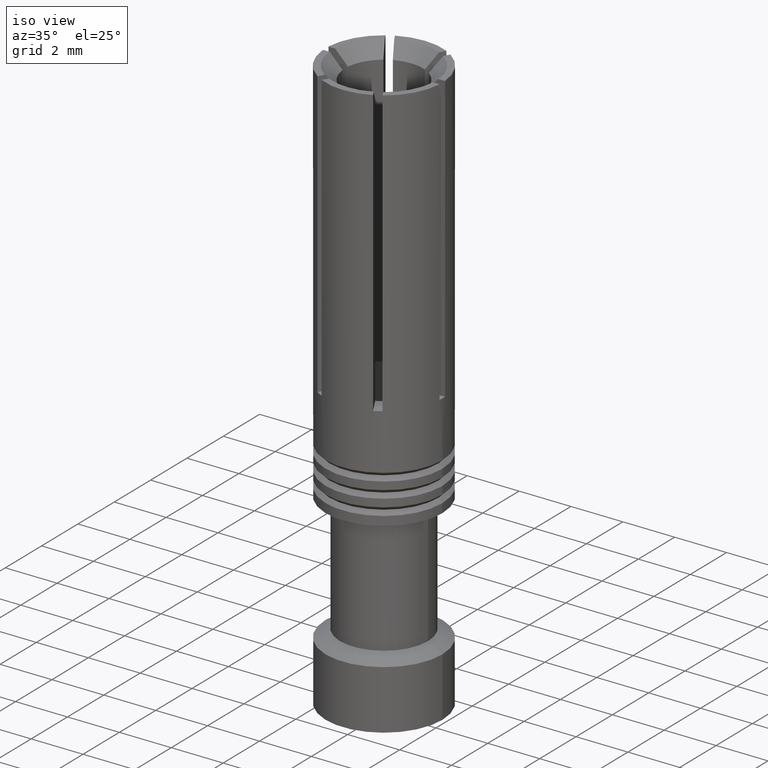
[diagram: clean part render]
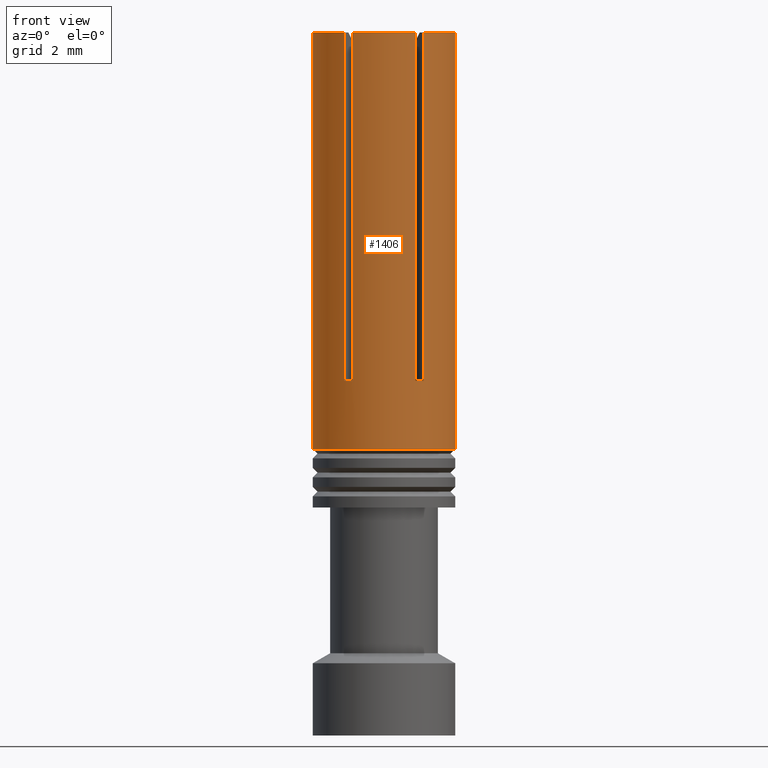
[diagram: tour spotlight — one face highlighted and labeled with its STEP entity id]
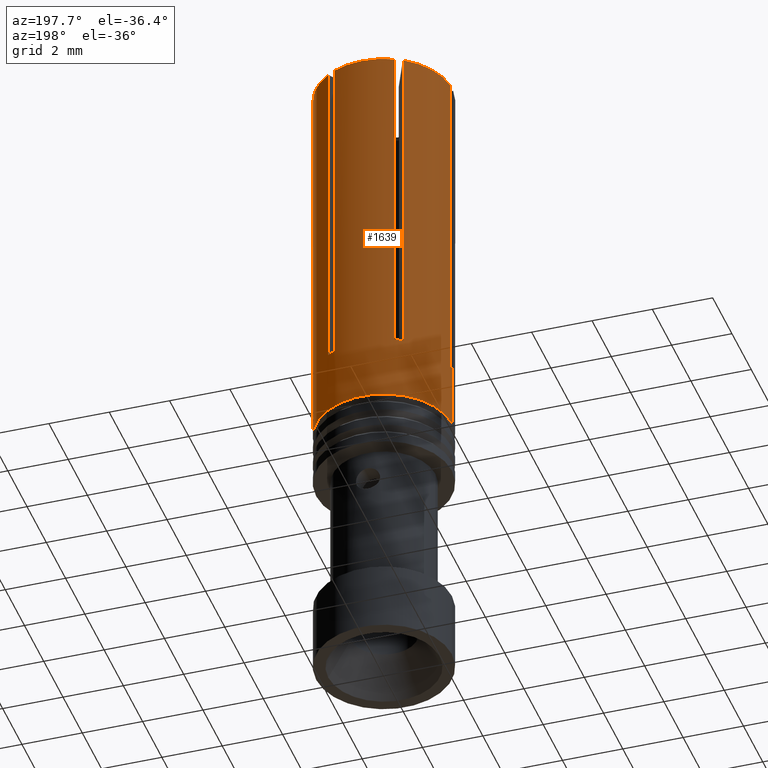
[diagram: tour spotlight — one face highlighted and labeled with its STEP entity id]
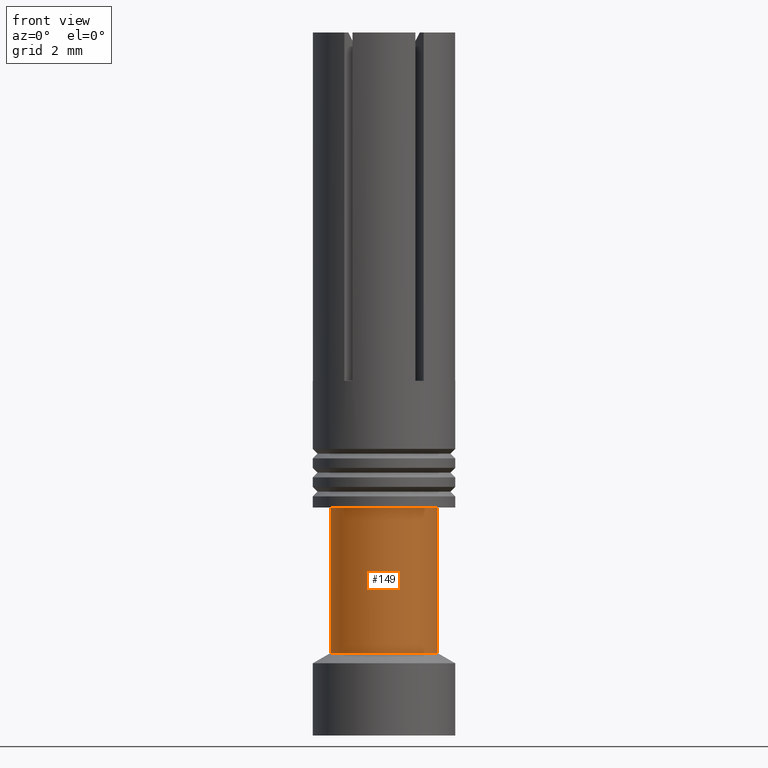
[diagram: tour spotlight — one face highlighted and labeled with its STEP entity id]
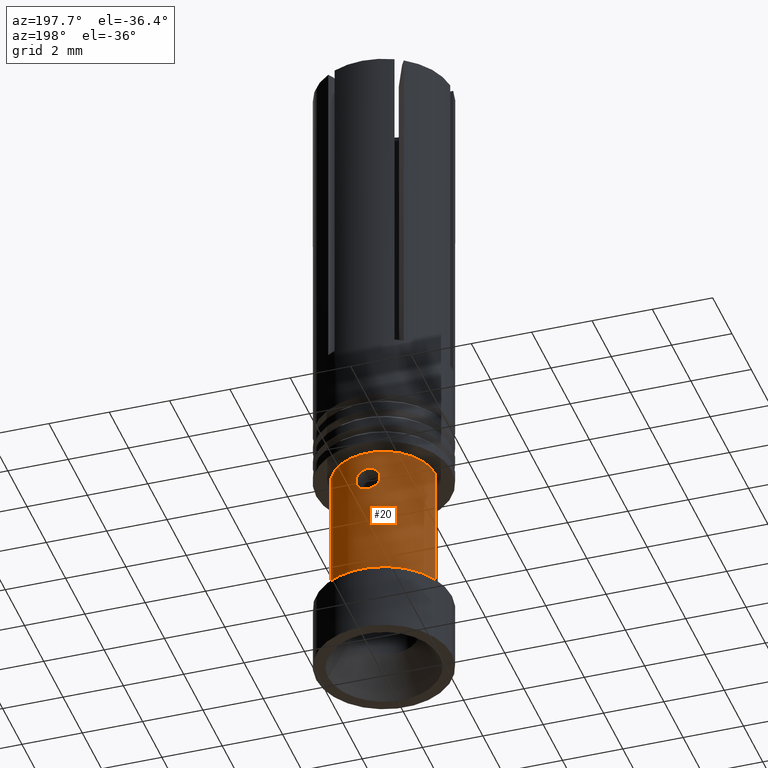
[diagram: tour spotlight — one face highlighted and labeled with its STEP entity id]
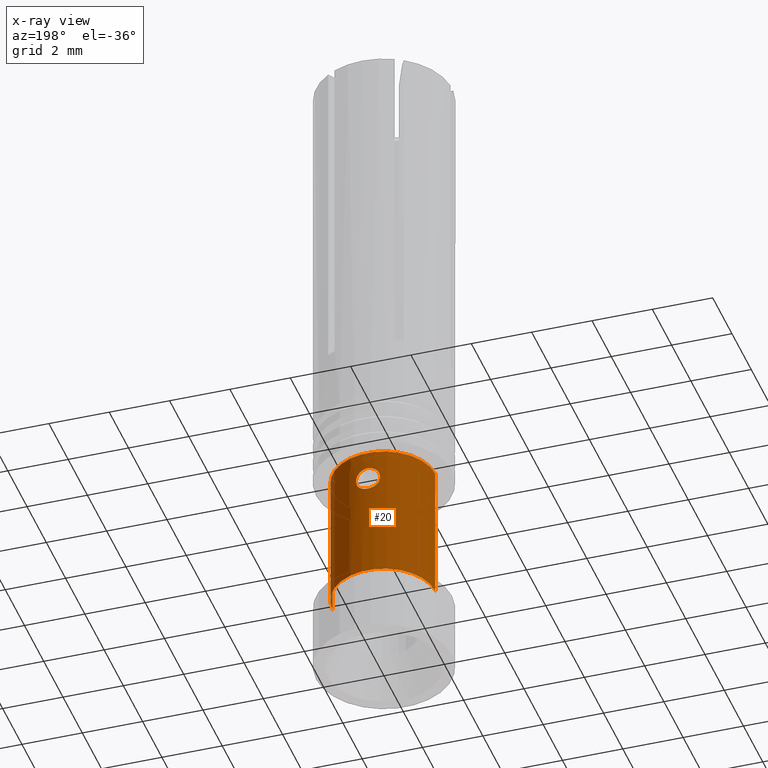
[diagram: x-ray of the same camera — body ghosted, this tour face saturated]
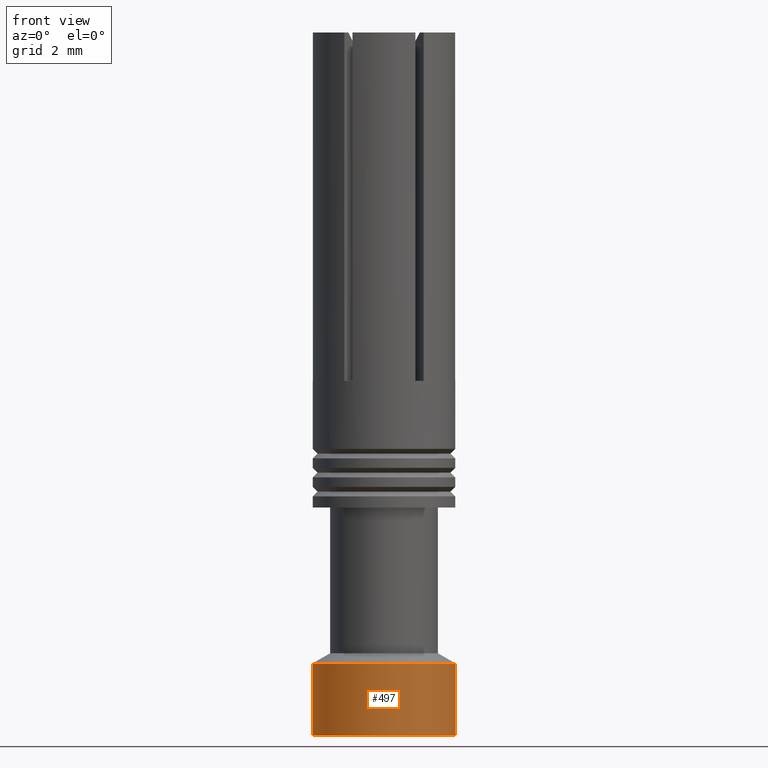
[diagram: tour spotlight — one face highlighted and labeled with its STEP entity id]
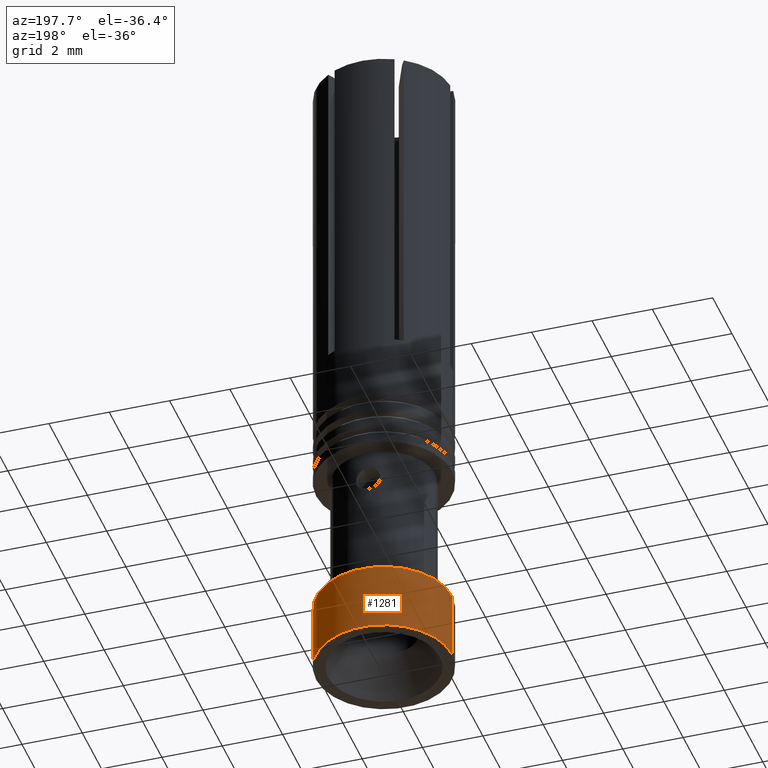
[diagram: tour spotlight — one face highlighted and labeled with its STEP entity id]
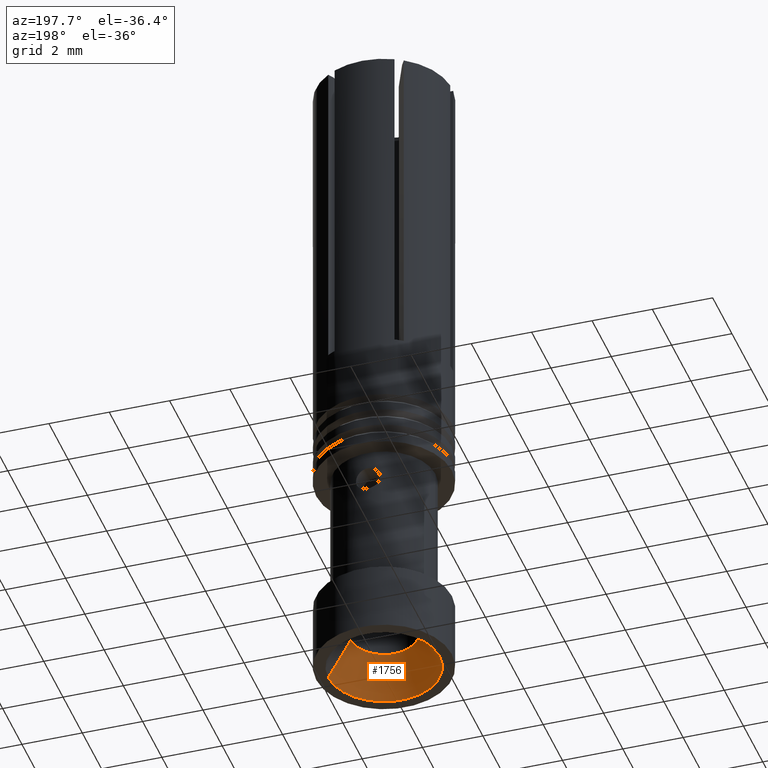
[diagram: tour spotlight — one face highlighted and labeled with its STEP entity id]
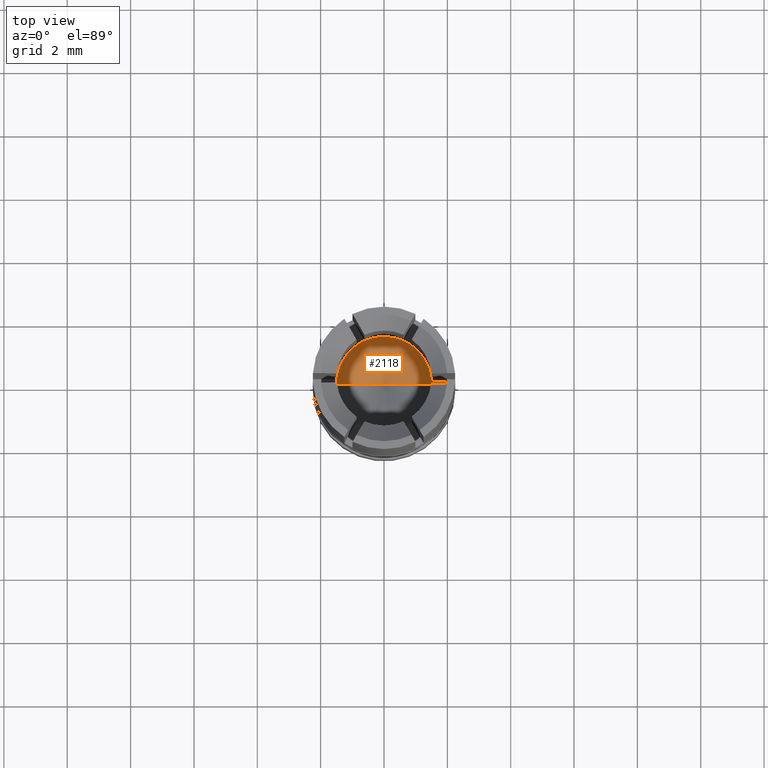
[diagram: tour spotlight — one face highlighted and labeled with its STEP entity id]
A machine part: a face-by-face anatomy tour. The part has 74 B-rep faces; the first image is the clean iso view, then the 8 largest visible faces are spotlighted one at a time (largest first), each with its STEP entity span.

Face 1 — front view, entity #1406. In plain terms, the highlighted cylindrical surface (partial cylindrical patch) has radius 2.25 mm, axis along (0, 0, 1).
Definition (entity closure, byte-faithful):
#3 = EDGE_CURVE ( 'NONE', #1673, #1487, #750, .T. ) ;
#46 = VECTOR ( 'NONE', #210, 1000.000000000000000 ) ;
#101 = DIRECTION ( 'NONE',  ( 1.000000000000000000, 0.000000000000000000, 0.000000000000000000 ) ) ;
#113 = DIRECTION ( 'NONE',  ( 0.000000000000000000, 0.000000000000000000, -1.000000000000000000 ) ) ;
#118 = ORIENTED_EDGE ( 'NONE', *, *, #186, .F. ) ;
#123 = CYLINDRICAL_SURFACE ( 'NONE', #1655, 2.250000000000000000 ) ;
#128 = LINE ( 'NONE', #1519, #1627 ) ;
#131 = CIRCLE ( 'NONE', #418, 2.250000000000000000 ) ;
#132 = AXIS2_PLACEMENT_3D ( 'NONE', #995, #1845, #268 ) ;
#186 = EDGE_CURVE ( 'NONE', #1465, #1487, #128, .T. ) ;
#205 = CIRCLE ( 'NONE', #1621, 2.250000000000000000 ) ;
#210 = DIRECTION ( 'NONE',  ( 0.000000000000000000, 0.000000000000000000, -1.000000000000000000 ) ) ;
#220 = LINE ( 'NONE', #1608, #1618 ) ;
#228 = ORIENTED_EDGE ( 'NONE', *, *, #1303, .T. ) ;
#250 = CARTESIAN_POINT ( 'NONE',  ( -2.244994432064360002, -0.1499999999999999944, 349.0000000000000000 ) ) ;
#268 = DIRECTION ( 'NONE',  ( 1.000000000000000000, 0.000000000000000000, 0.000000000000000000 ) ) ;
#273 = DIRECTION ( 'NONE',  ( 1.000000000000000000, 0.000000000000000000, 0.000000000000000000 ) ) ;
#283 = EDGE_CURVE ( 'NONE', #2041, #1731, #205, .T. ) ;
#300 = VECTOR ( 'NONE', #715, 1000.000000000000000 ) ;
#342 = CARTESIAN_POINT ( 'NONE',  ( 2.250000000000000000, 0.000000000000000000, 345.0000000000000000 ) ) ;
#374 = ORIENTED_EDGE ( 'NONE', *, *, #1145, .T. ) ;
#392 = VERTEX_POINT ( 'NONE', #1299 ) ;
#393 = DIRECTION ( 'NONE',  ( 0.000000000000000000, 0.000000000000000000, -1.000000000000000000 ) ) ;
#412 = ORIENTED_EDGE ( 'NONE', *, *, #2096, .F. ) ;
#418 = AXIS2_PLACEMENT_3D ( 'NONE', #444, #459, #273 ) ;
#426 = VERTEX_POINT ( 'NONE', #1637 ) ;
#440 = VERTEX_POINT ( 'NONE', #1482 ) ;
#442 = VECTOR ( 'NONE', #2095, 1000.000000000000000 ) ;
#444 = CARTESIAN_POINT ( 'NONE',  ( 0.000000000000000000, 0.000000000000000000, 349.0000000000000000 ) ) ;
#459 = DIRECTION ( 'NONE',  ( 0.000000000000000000, 0.000000000000000000, -1.000000000000000000 ) ) ;
#510 = LINE ( 'NONE', #1371, #300 ) ;
#531 = AXIS2_PLACEMENT_3D ( 'NONE', #1272, #393, #721 ) ;
#536 = DIRECTION ( 'NONE',  ( 1.000000000000000000, 0.000000000000000000, 0.000000000000000000 ) ) ;
#547 = LINE ( 'NONE', #1559, #442 ) ;
#551 = CARTESIAN_POINT ( 'NONE',  ( 0.000000000000000000, 0.000000000000000000, 360.0000000000000000 ) ) ;
#564 = VECTOR ( 'NONE', #1623, 1000.000000000000000 ) ;
#700 = CARTESIAN_POINT ( 'NONE',  ( -1.252401026599850198, -1.869222209522360068, 345.0000000000000000 ) ) ;
#705 = EDGE_CURVE ( 'NONE', #392, #2202, #712, .T. ) ;
#710 = CIRCLE ( 'NONE', #531, 2.250000000000000000 ) ;
#712 = LINE ( 'NONE', #700, #46 ) ;
#715 = DIRECTION ( 'NONE',  ( 0.000000000000000000, 0.000000000000000000, 1.000000000000000000 ) ) ;
#716 = VERTEX_POINT ( 'NONE', #1389 ) ;
#717 = AXIS2_PLACEMENT_3D ( 'NONE', #989, #113, #1509 ) ;
#721 = DIRECTION ( 'NONE',  ( 1.000000000000000000, 0.000000000000000000, 0.000000000000000000 ) ) ;
#739 = DIRECTION ( 'NONE',  ( 0.000000000000000000, 0.000000000000000000, 1.000000000000000000 ) ) ;
#750 = CIRCLE ( 'NONE', #717, 2.250000000000000000 ) ;
#778 = CARTESIAN_POINT ( 'NONE',  ( 2.244994432064360002, -0.1499999999999999944, 360.0000000000000000 ) ) ;
#785 = AXIS2_PLACEMENT_3D ( 'NONE', #1466, #1816, #1653 ) ;
#809 = CARTESIAN_POINT ( 'NONE',  ( -0.9925934054645180193, -2.019222209522359535, 360.0000000000000000 ) ) ;
#856 = AXIS2_PLACEMENT_3D ( 'NONE', #1784, #1635, #1765 ) ;
#869 = CARTESIAN_POINT ( 'NONE',  ( -2.244994432064370216, -0.1499999999999999944, 360.0000000000000000 ) ) ;
#878 = DIRECTION ( 'NONE',  ( 0.000000000000000000, 0.000000000000000000, 1.000000000000000000 ) ) ;
#880 = ORIENTED_EDGE ( 'NONE', *, *, #3, .T. ) ;
#894 = VECTOR ( 'NONE', #2179, 1000.000000000000000 ) ;
#947 = ORIENTED_EDGE ( 'NONE', *, *, #1269, .T. ) ;
#956 = CARTESIAN_POINT ( 'NONE',  ( 1.252401026599850198, -1.869222209522360068, 360.0000000000000000 ) ) ;
#967 = VERTEX_POINT ( 'NONE', #1843 ) ;
#972 = FACE_OUTER_BOUND ( 'NONE', #2139, .T. ) ;
#989 = CARTESIAN_POINT ( 'NONE',  ( 0.000000000000000000, 0.000000000000000000, 349.0000000000000000 ) ) ;
#995 = CARTESIAN_POINT ( 'NONE',  ( 0.000000000000000000, 0.000000000000000000, 349.0000000000000000 ) ) ;
#1011 = ORIENTED_EDGE ( 'NONE', *, *, #1634, .F. ) ;
#1043 = CIRCLE ( 'NONE', #856, 2.250000000000000000 ) ;
#1114 = CIRCLE ( 'NONE', #132, 2.250000000000000000 ) ;
#1131 = VERTEX_POINT ( 'NONE', #250 ) ;
#1145 = EDGE_CURVE ( 'NONE', #1131, #440, #131, .T. ) ;
#1252 = EDGE_CURVE ( 'NONE', #1825, #1465, #1043, .T. ) ;
#1266 = ORIENTED_EDGE ( 'NONE', *, *, #1791, .F. ) ;
#1267 = CARTESIAN_POINT ( 'NONE',  ( 0.000000000000000000, 0.000000000000000000, 360.0000000000000000 ) ) ;
#1269 = EDGE_CURVE ( 'NONE', #716, #1731, #1384, .T. ) ;
#1272 = CARTESIAN_POINT ( 'NONE',  ( 0.000000000000000000, 0.000000000000000000, 349.0000000000000000 ) ) ;
#1299 = CARTESIAN_POINT ( 'NONE',  ( -1.252401026599850198, -1.869222209522360068, 360.0000000000000000 ) ) ;
#1303 = EDGE_CURVE ( 'NONE', #426, #1673, #1894, .T. ) ;
#1371 = CARTESIAN_POINT ( 'NONE',  ( 1.252401026599850198, -1.869222209522360068, 345.0000000000000000 ) ) ;
#1384 = LINE ( 'NONE', #2064, #1722 ) ;
#1385 = ORIENTED_EDGE ( 'NONE', *, *, #1844, .T. ) ;
#1389 = CARTESIAN_POINT ( 'NONE',  ( 0.9925934054645160209, -2.019222209522359535, 349.0000000000000000 ) ) ;
#1402 = EDGE_CURVE ( 'NONE', #967, #716, #1114, .T. ) ;
#1406 = ADVANCED_FACE ( 'NONE', ( #972 ), #123, .T. ) ;
#1421 = EDGE_CURVE ( 'NONE', #2041, #1584, #1468, .T. ) ;
#1454 = ORIENTED_EDGE ( 'NONE', *, *, #2114, .F. ) ;
#1465 = VERTEX_POINT ( 'NONE', #778 ) ;
#1466 = CARTESIAN_POINT ( 'NONE',  ( 0.000000000000000000, 0.000000000000000000, 346.8499999999999659 ) ) ;
#1468 = LINE ( 'NONE', #1515, #894 ) ;
#1479 = CIRCLE ( 'NONE', #2116, 2.250000000000000000 ) ;
#1480 = CARTESIAN_POINT ( 'NONE',  ( 0.000000000000000000, 0.000000000000000000, 345.0000000000000000 ) ) ;
#1482 = CARTESIAN_POINT ( 'NONE',  ( -2.250000000000000000, 2.755455298081544285E-16, 349.0000000000000000 ) ) ;
#1487 = VERTEX_POINT ( 'NONE', #2014 ) ;
#1490 = DIRECTION ( 'NONE',  ( 0.000000000000000000, 0.000000000000000000, 1.000000000000000000 ) ) ;
#1500 = ORIENTED_EDGE ( 'NONE', *, *, #283, .F. ) ;
#1509 = DIRECTION ( 'NONE',  ( 1.000000000000000000, 0.000000000000000000, 0.000000000000000000 ) ) ;
#1515 = CARTESIAN_POINT ( 'NONE',  ( -0.9925934054645180193, -2.019222209522359535, 345.0000000000000000 ) ) ;
#1519 = CARTESIAN_POINT ( 'NONE',  ( 2.244994432064360002, -0.1499999999999999944, 345.0000000000000000 ) ) ;
#1559 = CARTESIAN_POINT ( 'NONE',  ( -2.244994432064360002, -0.1499999999999999944, 345.0000000000000000 ) ) ;
#1584 = VERTEX_POINT ( 'NONE', #1875 ) ;
#1608 = CARTESIAN_POINT ( 'NONE',  ( -2.250000000000000000, 2.755455298081544285E-16, 345.0000000000000000 ) ) ;
#1618 = VECTOR ( 'NONE', #739, 1000.000000000000000 ) ;
#1620 = DIRECTION ( 'NONE',  ( 0.000000000000000000, 0.000000000000000000, 1.000000000000000000 ) ) ;
#1621 = AXIS2_PLACEMENT_3D ( 'NONE', #1267, #878, #536 ) ;
#1623 = DIRECTION ( 'NONE',  ( 0.000000000000000000, 0.000000000000000000, 1.000000000000000000 ) ) ;
#1627 = VECTOR ( 'NONE', #2198, 1000.000000000000000 ) ;
#1634 = EDGE_CURVE ( 'NONE', #1944, #440, #220, .T. ) ;
#1635 = DIRECTION ( 'NONE',  ( 0.000000000000000000, 0.000000000000000000, 1.000000000000000000 ) ) ;
#1637 = CARTESIAN_POINT ( 'NONE',  ( 2.250000000000000000, 0.000000000000000000, 346.8499999999999659 ) ) ;
#1653 = DIRECTION ( 'NONE',  ( 1.000000000000000000, 0.000000000000000000, 0.000000000000000000 ) ) ;
#1655 = AXIS2_PLACEMENT_3D ( 'NONE', #1480, #1490, #101 ) ;
#1662 = EDGE_CURVE ( 'NONE', #1584, #2202, #710, .T. ) ;
#1673 = VERTEX_POINT ( 'NONE', #1772 ) ;
#1722 = VECTOR ( 'NONE', #1726, 1000.000000000000000 ) ;
#1726 = DIRECTION ( 'NONE',  ( 0.000000000000000000, 0.000000000000000000, 1.000000000000000000 ) ) ;
#1731 = VERTEX_POINT ( 'NONE', #2121 ) ;
#1765 = DIRECTION ( 'NONE',  ( 1.000000000000000000, 0.000000000000000000, 0.000000000000000000 ) ) ;
#1772 = CARTESIAN_POINT ( 'NONE',  ( 2.250000000000000000, 0.000000000000000000, 349.0000000000000000 ) ) ;
#1784 = CARTESIAN_POINT ( 'NONE',  ( 0.000000000000000000, 0.000000000000000000, 360.0000000000000000 ) ) ;
#1791 = EDGE_CURVE ( 'NONE', #2106, #392, #1479, .T. ) ;
#1810 = ORIENTED_EDGE ( 'NONE', *, *, #1662, .T. ) ;
#1816 = DIRECTION ( 'NONE',  ( 0.000000000000000000, 0.000000000000000000, 1.000000000000000000 ) ) ;
#1825 = VERTEX_POINT ( 'NONE', #956 ) ;
#1827 = CARTESIAN_POINT ( 'NONE',  ( -2.250000000000000000, 2.755455298081544285E-16, 346.8499999999999659 ) ) ;
#1843 = CARTESIAN_POINT ( 'NONE',  ( 1.252401026599850198, -1.869222209522360068, 349.0000000000000000 ) ) ;
#1844 = EDGE_CURVE ( 'NONE', #1944, #426, #1905, .T. ) ;
#1845 = DIRECTION ( 'NONE',  ( 0.000000000000000000, 0.000000000000000000, -1.000000000000000000 ) ) ;
#1875 = CARTESIAN_POINT ( 'NONE',  ( -0.9925934054645180193, -2.019222209522359535, 349.0000000000000000 ) ) ;
#1894 = LINE ( 'NONE', #342, #564 ) ;
#1905 = CIRCLE ( 'NONE', #785, 2.250000000000000000 ) ;
#1915 = CARTESIAN_POINT ( 'NONE',  ( -1.252401026599850198, -1.869222209522360068, 349.0000000000000000 ) ) ;
#1922 = ORIENTED_EDGE ( 'NONE', *, *, #1402, .T. ) ;
#1928 = DIRECTION ( 'NONE',  ( 1.000000000000000000, 0.000000000000000000, 0.000000000000000000 ) ) ;
#1944 = VERTEX_POINT ( 'NONE', #1827 ) ;
#1983 = ORIENTED_EDGE ( 'NONE', *, *, #1421, .T. ) ;
#1993 = ORIENTED_EDGE ( 'NONE', *, *, #1252, .F. ) ;
#2014 = CARTESIAN_POINT ( 'NONE',  ( 2.244994432064360002, -0.1499999999999999944, 349.0000000000000000 ) ) ;
#2041 = VERTEX_POINT ( 'NONE', #809 ) ;
#2064 = CARTESIAN_POINT ( 'NONE',  ( 0.9925934054645160209, -2.019222209522359535, 345.0000000000000000 ) ) ;
#2095 = DIRECTION ( 'NONE',  ( 0.000000000000000000, 0.000000000000000000, 1.000000000000000000 ) ) ;
#2096 = EDGE_CURVE ( 'NONE', #1131, #2106, #547, .T. ) ;
#2106 = VERTEX_POINT ( 'NONE', #869 ) ;
#2114 = EDGE_CURVE ( 'NONE', #967, #1825, #510, .T. ) ;
#2116 = AXIS2_PLACEMENT_3D ( 'NONE', #551, #1620, #1928 ) ;
#2121 = CARTESIAN_POINT ( 'NONE',  ( 0.9925934054645160209, -2.019222209522359535, 360.0000000000000000 ) ) ;
#2139 = EDGE_LOOP ( 'NONE', ( #1011, #1385, #228, #880, #118, #1993, #1454, #1922, #947, #1500, #1983, #1810, #2197, #1266, #412, #374 ) ) ;
#2179 = DIRECTION ( 'NONE',  ( 0.000000000000000000, 0.000000000000000000, -1.000000000000000000 ) ) ;
#2197 = ORIENTED_EDGE ( 'NONE', *, *, #705, .F. ) ;
#2198 = DIRECTION ( 'NONE',  ( 0.000000000000000000, 0.000000000000000000, -1.000000000000000000 ) ) ;
#2202 = VERTEX_POINT ( 'NONE', #1915 ) ;

Face 2 — auxiliary view, entity #1639. In plain terms, the highlighted cylindrical surface (partial cylindrical patch) has radius 2.25 mm, axis along (0, 0, 1).
Definition (entity closure, byte-faithful):
#9 = VECTOR ( 'NONE', #1520, 1000.000000000000000 ) ;
#15 = ORIENTED_EDGE ( 'NONE', *, *, #1303, .F. ) ;
#25 = ORIENTED_EDGE ( 'NONE', *, *, #358, .F. ) ;
#37 = FACE_OUTER_BOUND ( 'NONE', #160, .T. ) ;
#45 = EDGE_CURVE ( 'NONE', #440, #180, #1194, .T. ) ;
#86 = DIRECTION ( 'NONE',  ( 0.000000000000000000, 0.000000000000000000, 1.000000000000000000 ) ) ;
#117 = VECTOR ( 'NONE', #1176, 1000.000000000000000 ) ;
#130 = ORIENTED_EDGE ( 'NONE', *, *, #642, .F. ) ;
#136 = CIRCLE ( 'NONE', #1410, 2.250000000000000000 ) ;
#144 = DIRECTION ( 'NONE',  ( 1.000000000000000000, 0.000000000000000000, 0.000000000000000000 ) ) ;
#153 = DIRECTION ( 'NONE',  ( 0.000000000000000000, 0.000000000000000000, -1.000000000000000000 ) ) ;
#160 = EDGE_LOOP ( 'NONE', ( #807, #671, #771, #1413, #311, #2159, #2021, #1598, #2150, #130, #726, #1647, #25, #695, #1234, #15 ) ) ;
#180 = VERTEX_POINT ( 'NONE', #1848 ) ;
#198 = DIRECTION ( 'NONE',  ( 1.000000000000000000, 0.000000000000000000, 0.000000000000000000 ) ) ;
#219 = VERTEX_POINT ( 'NONE', #702 ) ;
#220 = LINE ( 'NONE', #1608, #1618 ) ;
#236 = AXIS2_PLACEMENT_3D ( 'NONE', #1308, #429, #1988 ) ;
#311 = ORIENTED_EDGE ( 'NONE', *, *, #1818, .F. ) ;
#324 = DIRECTION ( 'NONE',  ( 1.000000000000000000, 0.000000000000000000, 0.000000000000000000 ) ) ;
#339 = VERTEX_POINT ( 'NONE', #407 ) ;
#342 = CARTESIAN_POINT ( 'NONE',  ( 2.250000000000000000, 0.000000000000000000, 345.0000000000000000 ) ) ;
#343 = VERTEX_POINT ( 'NONE', #2002 ) ;
#358 = EDGE_CURVE ( 'NONE', #339, #422, #136, .T. ) ;
#360 = CARTESIAN_POINT ( 'NONE',  ( 0.9925934054645180193, 2.019222209522359535, 349.0000000000000000 ) ) ;
#369 = DIRECTION ( 'NONE',  ( 0.000000000000000000, 0.000000000000000000, -1.000000000000000000 ) ) ;
#386 = VERTEX_POINT ( 'NONE', #1106 ) ;
#404 = VECTOR ( 'NONE', #1324, 1000.000000000000000 ) ;
#407 = CARTESIAN_POINT ( 'NONE',  ( 2.244994432064360002, 0.1499999999999999944, 360.0000000000000000 ) ) ;
#413 = CARTESIAN_POINT ( 'NONE',  ( 0.000000000000000000, 0.000000000000000000, 345.0000000000000000 ) ) ;
#422 = VERTEX_POINT ( 'NONE', #1311 ) ;
#426 = VERTEX_POINT ( 'NONE', #1637 ) ;
#429 = DIRECTION ( 'NONE',  ( 0.000000000000000000, 0.000000000000000000, 1.000000000000000000 ) ) ;
#431 = CARTESIAN_POINT ( 'NONE',  ( -0.9925934054645160209, 2.019222209522359535, 360.0000000000000000 ) ) ;
#440 = VERTEX_POINT ( 'NONE', #1482 ) ;
#474 = CARTESIAN_POINT ( 'NONE',  ( 0.000000000000000000, 0.000000000000000000, 349.0000000000000000 ) ) ;
#528 = CARTESIAN_POINT ( 'NONE',  ( 0.000000000000000000, 0.000000000000000000, 360.0000000000000000 ) ) ;
#542 = DIRECTION ( 'NONE',  ( 0.000000000000000000, 0.000000000000000000, 1.000000000000000000 ) ) ;
#555 = CARTESIAN_POINT ( 'NONE',  ( -0.9925934054645160209, 2.019222209522359535, 349.0000000000000000 ) ) ;
#564 = VECTOR ( 'NONE', #1623, 1000.000000000000000 ) ;
#601 = CIRCLE ( 'NONE', #1546, 2.250000000000000000 ) ;
#628 = CARTESIAN_POINT ( 'NONE',  ( -1.252401026599850198, 1.869222209522360068, 345.0000000000000000 ) ) ;
#642 = EDGE_CURVE ( 'NONE', #1019, #219, #1247, .T. ) ;
#644 = DIRECTION ( 'NONE',  ( 1.000000000000000000, 0.000000000000000000, 0.000000000000000000 ) ) ;
#649 = DIRECTION ( 'NONE',  ( 0.000000000000000000, 0.000000000000000000, -1.000000000000000000 ) ) ;
#650 = CARTESIAN_POINT ( 'NONE',  ( -2.244994432064360002, 0.1499999999999999944, 345.0000000000000000 ) ) ;
#671 = ORIENTED_EDGE ( 'NONE', *, *, #1634, .T. ) ;
#695 = ORIENTED_EDGE ( 'NONE', *, *, #1819, .T. ) ;
#702 = CARTESIAN_POINT ( 'NONE',  ( 0.9925934054645180193, 2.019222209522359535, 360.0000000000000000 ) ) ;
#711 = CARTESIAN_POINT ( 'NONE',  ( 1.252401026599850198, 1.869222209522360068, 349.0000000000000000 ) ) ;
#726 = ORIENTED_EDGE ( 'NONE', *, *, #897, .T. ) ;
#739 = DIRECTION ( 'NONE',  ( 0.000000000000000000, 0.000000000000000000, 1.000000000000000000 ) ) ;
#742 = AXIS2_PLACEMENT_3D ( 'NONE', #413, #542, #1411 ) ;
#771 = ORIENTED_EDGE ( 'NONE', *, *, #45, .T. ) ;
#806 = EDGE_CURVE ( 'NONE', #426, #1944, #2228, .T. ) ;
#807 = ORIENTED_EDGE ( 'NONE', *, *, #806, .T. ) ;
#861 = DIRECTION ( 'NONE',  ( 0.000000000000000000, 0.000000000000000000, 1.000000000000000000 ) ) ;
#864 = EDGE_CURVE ( 'NONE', #1031, #1673, #601, .T. ) ;
#885 = CYLINDRICAL_SURFACE ( 'NONE', #742, 2.250000000000000000 ) ;
#897 = EDGE_CURVE ( 'NONE', #1019, #1705, #1369, .T. ) ;
#936 = AXIS2_PLACEMENT_3D ( 'NONE', #1344, #86, #644 ) ;
#953 = LINE ( 'NONE', #990, #1903 ) ;
#961 = DIRECTION ( 'NONE',  ( 0.000000000000000000, 0.000000000000000000, 1.000000000000000000 ) ) ;
#990 = CARTESIAN_POINT ( 'NONE',  ( 1.252401026599850198, 1.869222209522360068, 345.0000000000000000 ) ) ;
#1019 = VERTEX_POINT ( 'NONE', #360 ) ;
#1023 = EDGE_CURVE ( 'NONE', #343, #1244, #2045, .T. ) ;
#1031 = VERTEX_POINT ( 'NONE', #2227 ) ;
#1041 = AXIS2_PLACEMENT_3D ( 'NONE', #1918, #369, #1069 ) ;
#1069 = DIRECTION ( 'NONE',  ( 1.000000000000000000, 0.000000000000000000, 0.000000000000000000 ) ) ;
#1073 = CARTESIAN_POINT ( 'NONE',  ( 0.9925934054645180193, 2.019222209522359535, 345.0000000000000000 ) ) ;
#1080 = AXIS2_PLACEMENT_3D ( 'NONE', #1523, #153, #144 ) ;
#1082 = CIRCLE ( 'NONE', #936, 2.250000000000000000 ) ;
#1094 = EDGE_CURVE ( 'NONE', #219, #1417, #2186, .T. ) ;
#1106 = CARTESIAN_POINT ( 'NONE',  ( -1.252401026599850198, 1.869222209522360068, 360.0000000000000000 ) ) ;
#1118 = CARTESIAN_POINT ( 'NONE',  ( 0.000000000000000000, 0.000000000000000000, 360.0000000000000000 ) ) ;
#1154 = VECTOR ( 'NONE', #1677, 1000.000000000000000 ) ;
#1158 = LINE ( 'NONE', #650, #9 ) ;
#1176 = DIRECTION ( 'NONE',  ( 0.000000000000000000, 0.000000000000000000, -1.000000000000000000 ) ) ;
#1188 = EDGE_CURVE ( 'NONE', #1705, #422, #953, .T. ) ;
#1194 = CIRCLE ( 'NONE', #2019, 2.250000000000000000 ) ;
#1204 = DIRECTION ( 'NONE',  ( 1.000000000000000000, 0.000000000000000000, 0.000000000000000000 ) ) ;
#1234 = ORIENTED_EDGE ( 'NONE', *, *, #864, .T. ) ;
#1244 = VERTEX_POINT ( 'NONE', #555 ) ;
#1247 = LINE ( 'NONE', #1073, #1321 ) ;
#1303 = EDGE_CURVE ( 'NONE', #426, #1673, #1894, .T. ) ;
#1308 = CARTESIAN_POINT ( 'NONE',  ( 0.000000000000000000, 0.000000000000000000, 346.8499999999999659 ) ) ;
#1311 = CARTESIAN_POINT ( 'NONE',  ( 1.252401026599850198, 1.869222209522360068, 360.0000000000000000 ) ) ;
#1321 = VECTOR ( 'NONE', #1753, 1000.000000000000000 ) ;
#1324 = DIRECTION ( 'NONE',  ( 0.000000000000000000, 0.000000000000000000, -1.000000000000000000 ) ) ;
#1330 = AXIS2_PLACEMENT_3D ( 'NONE', #528, #861, #198 ) ;
#1344 = CARTESIAN_POINT ( 'NONE',  ( 0.000000000000000000, 0.000000000000000000, 360.0000000000000000 ) ) ;
#1369 = CIRCLE ( 'NONE', #1080, 2.250000000000000000 ) ;
#1410 = AXIS2_PLACEMENT_3D ( 'NONE', #1118, #961, #1613 ) ;
#1411 = DIRECTION ( 'NONE',  ( 1.000000000000000000, 0.000000000000000000, 0.000000000000000000 ) ) ;
#1413 = ORIENTED_EDGE ( 'NONE', *, *, #1985, .T. ) ;
#1417 = VERTEX_POINT ( 'NONE', #431 ) ;
#1482 = CARTESIAN_POINT ( 'NONE',  ( -2.250000000000000000, 2.755455298081544285E-16, 349.0000000000000000 ) ) ;
#1497 = CARTESIAN_POINT ( 'NONE',  ( -0.9925934054645160209, 2.019222209522359535, 345.0000000000000000 ) ) ;
#1510 = LINE ( 'NONE', #1497, #117 ) ;
#1520 = DIRECTION ( 'NONE',  ( 0.000000000000000000, 0.000000000000000000, 1.000000000000000000 ) ) ;
#1523 = CARTESIAN_POINT ( 'NONE',  ( 0.000000000000000000, 0.000000000000000000, 349.0000000000000000 ) ) ;
#1537 = CARTESIAN_POINT ( 'NONE',  ( 0.000000000000000000, 0.000000000000000000, 349.0000000000000000 ) ) ;
#1546 = AXIS2_PLACEMENT_3D ( 'NONE', #474, #2035, #324 ) ;
#1598 = ORIENTED_EDGE ( 'NONE', *, *, #2030, .F. ) ;
#1608 = CARTESIAN_POINT ( 'NONE',  ( -2.250000000000000000, 2.755455298081544285E-16, 345.0000000000000000 ) ) ;
#1613 = DIRECTION ( 'NONE',  ( 1.000000000000000000, 0.000000000000000000, 0.000000000000000000 ) ) ;
#1618 = VECTOR ( 'NONE', #739, 1000.000000000000000 ) ;
#1623 = DIRECTION ( 'NONE',  ( 0.000000000000000000, 0.000000000000000000, 1.000000000000000000 ) ) ;
#1634 = EDGE_CURVE ( 'NONE', #1944, #440, #220, .T. ) ;
#1636 = VERTEX_POINT ( 'NONE', #2091 ) ;
#1637 = CARTESIAN_POINT ( 'NONE',  ( 2.250000000000000000, 0.000000000000000000, 346.8499999999999659 ) ) ;
#1639 = ADVANCED_FACE ( 'NONE', ( #37 ), #885, .T. ) ;
#1647 = ORIENTED_EDGE ( 'NONE', *, *, #1188, .T. ) ;
#1651 = LINE ( 'NONE', #628, #404 ) ;
#1673 = VERTEX_POINT ( 'NONE', #1772 ) ;
#1677 = DIRECTION ( 'NONE',  ( 0.000000000000000000, 0.000000000000000000, -1.000000000000000000 ) ) ;
#1705 = VERTEX_POINT ( 'NONE', #711 ) ;
#1753 = DIRECTION ( 'NONE',  ( 0.000000000000000000, 0.000000000000000000, 1.000000000000000000 ) ) ;
#1772 = CARTESIAN_POINT ( 'NONE',  ( 2.250000000000000000, 0.000000000000000000, 349.0000000000000000 ) ) ;
#1807 = LINE ( 'NONE', #2022, #1154 ) ;
#1818 = EDGE_CURVE ( 'NONE', #386, #1636, #1082, .T. ) ;
#1819 = EDGE_CURVE ( 'NONE', #339, #1031, #1807, .T. ) ;
#1827 = CARTESIAN_POINT ( 'NONE',  ( -2.250000000000000000, 2.755455298081544285E-16, 346.8499999999999659 ) ) ;
#1838 = DIRECTION ( 'NONE',  ( 0.000000000000000000, 0.000000000000000000, 1.000000000000000000 ) ) ;
#1848 = CARTESIAN_POINT ( 'NONE',  ( -2.244994432064360002, 0.1499999999999999944, 349.0000000000000000 ) ) ;
#1894 = LINE ( 'NONE', #342, #564 ) ;
#1903 = VECTOR ( 'NONE', #1838, 1000.000000000000000 ) ;
#1918 = CARTESIAN_POINT ( 'NONE',  ( 0.000000000000000000, 0.000000000000000000, 349.0000000000000000 ) ) ;
#1944 = VERTEX_POINT ( 'NONE', #1827 ) ;
#1985 = EDGE_CURVE ( 'NONE', #180, #1636, #1158, .T. ) ;
#1988 = DIRECTION ( 'NONE',  ( 1.000000000000000000, 0.000000000000000000, 0.000000000000000000 ) ) ;
#2002 = CARTESIAN_POINT ( 'NONE',  ( -1.252401026599850198, 1.869222209522360068, 349.0000000000000000 ) ) ;
#2019 = AXIS2_PLACEMENT_3D ( 'NONE', #1537, #649, #1204 ) ;
#2021 = ORIENTED_EDGE ( 'NONE', *, *, #1023, .T. ) ;
#2022 = CARTESIAN_POINT ( 'NONE',  ( 2.244994432064360002, 0.1499999999999999944, 345.0000000000000000 ) ) ;
#2030 = EDGE_CURVE ( 'NONE', #1417, #1244, #1510, .T. ) ;
#2033 = EDGE_CURVE ( 'NONE', #386, #343, #1651, .T. ) ;
#2035 = DIRECTION ( 'NONE',  ( 0.000000000000000000, 0.000000000000000000, -1.000000000000000000 ) ) ;
#2045 = CIRCLE ( 'NONE', #1041, 2.250000000000000000 ) ;
#2091 = CARTESIAN_POINT ( 'NONE',  ( -2.244994432064370216, 0.1499999999999999944, 360.0000000000000000 ) ) ;
#2150 = ORIENTED_EDGE ( 'NONE', *, *, #1094, .F. ) ;
#2159 = ORIENTED_EDGE ( 'NONE', *, *, #2033, .T. ) ;
#2186 = CIRCLE ( 'NONE', #1330, 2.250000000000000000 ) ;
#2227 = CARTESIAN_POINT ( 'NONE',  ( 2.244994432064360002, 0.1499999999999999944, 349.0000000000000000 ) ) ;
#2228 = CIRCLE ( 'NONE', #236, 2.250000000000000000 ) ;

Face 3 — front view, entity #149. In plain terms, the highlighted cylindrical surface (partial cylindrical patch) has radius 1.7 mm, axis along (0, 0, 1).
Definition (entity closure, byte-faithful):
#29 = DIRECTION ( 'NONE',  ( 1.000000000000000000, 1.224646799147350002E-16, 0.000000000000000000 ) ) ;
#48 = EDGE_CURVE ( 'NONE', #367, #640, #138, .T. ) ;
#104 = ORIENTED_EDGE ( 'NONE', *, *, #1745, .T. ) ;
#133 = AXIS2_PLACEMENT_3D ( 'NONE', #402, #1102, #29 ) ;
#138 = LINE ( 'NONE', #1891, #2123 ) ;
#149 = ADVANCED_FACE ( 'NONE', ( #319 ), #839, .T. ) ;
#255 = CARTESIAN_POINT ( 'NONE',  ( 1.699999999999999956, 0.000000000000000000, 340.3999999999999773 ) ) ;
#284 = CARTESIAN_POINT ( 'NONE',  ( 1.699999999999999956, 2.418677428316022529E-16, 340.3999999999999773 ) ) ;
#319 = FACE_OUTER_BOUND ( 'NONE', #2070, .T. ) ;
#367 = VERTEX_POINT ( 'NONE', #1625 ) ;
#379 = VERTEX_POINT ( 'NONE', #455 ) ;
#402 = CARTESIAN_POINT ( 'NONE',  ( 0.000000000000000000, 0.000000000000000000, 345.0000000000000000 ) ) ;
#414 = LINE ( 'NONE', #255, #492 ) ;
#455 = CARTESIAN_POINT ( 'NONE',  ( 1.699999999999999956, 2.081899558550494856E-16, 345.0000000000000000 ) ) ;
#462 = VERTEX_POINT ( 'NONE', #284 ) ;
#492 = VECTOR ( 'NONE', #957, 1000.000000000000000 ) ;
#640 = VERTEX_POINT ( 'NONE', #1436 ) ;
#679 = CARTESIAN_POINT ( 'NONE',  ( 0.000000000000000000, 0.000000000000000000, 340.3999999999999773 ) ) ;
#839 = CYLINDRICAL_SURFACE ( 'NONE', #1343, 1.699999999999999956 ) ;
#847 = EDGE_CURVE ( 'NONE', #462, #379, #414, .T. ) ;
#889 = CARTESIAN_POINT ( 'NONE',  ( 0.000000000000000000, 0.000000000000000000, 340.3999999999999773 ) ) ;
#957 = DIRECTION ( 'NONE',  ( 0.000000000000000000, 0.000000000000000000, 1.000000000000000000 ) ) ;
#1102 = DIRECTION ( 'NONE',  ( 0.000000000000000000, 0.000000000000000000, -1.000000000000000000 ) ) ;
#1115 = CIRCLE ( 'NONE', #133, 1.699999999999999956 ) ;
#1142 = ORIENTED_EDGE ( 'NONE', *, *, #48, .F. ) ;
#1256 = ORIENTED_EDGE ( 'NONE', *, *, #847, .T. ) ;
#1343 = AXIS2_PLACEMENT_3D ( 'NONE', #679, #2050, #1381 ) ;
#1381 = DIRECTION ( 'NONE',  ( 1.000000000000000000, 0.000000000000000000, 0.000000000000000000 ) ) ;
#1383 = DIRECTION ( 'NONE',  ( 1.000000000000000000, 1.224646799147350002E-16, 0.000000000000000000 ) ) ;
#1430 = CIRCLE ( 'NONE', #1464, 1.699999999999999956 ) ;
#1436 = CARTESIAN_POINT ( 'NONE',  ( -1.699999999999999956, 2.081899558550500280E-16, 345.0000000000000000 ) ) ;
#1464 = AXIS2_PLACEMENT_3D ( 'NONE', #889, #1548, #1383 ) ;
#1548 = DIRECTION ( 'NONE',  ( 0.000000000000000000, 0.000000000000000000, -1.000000000000000000 ) ) ;
#1625 = CARTESIAN_POINT ( 'NONE',  ( -1.699999999999999956, 0.000000000000000000, 340.3999999999999773 ) ) ;
#1683 = DIRECTION ( 'NONE',  ( 0.000000000000000000, 0.000000000000000000, 1.000000000000000000 ) ) ;
#1745 = EDGE_CURVE ( 'NONE', #379, #640, #1115, .T. ) ;
#1891 = CARTESIAN_POINT ( 'NONE',  ( -1.699999999999999956, 2.081899558550500280E-16, 340.3999999999999773 ) ) ;
#2050 = DIRECTION ( 'NONE',  ( 0.000000000000000000, 0.000000000000000000, 1.000000000000000000 ) ) ;
#2070 = EDGE_LOOP ( 'NONE', ( #1142, #2099, #1256, #104 ) ) ;
#2099 = ORIENTED_EDGE ( 'NONE', *, *, #2120, .F. ) ;
#2120 = EDGE_CURVE ( 'NONE', #462, #367, #1430, .T. ) ;
#2123 = VECTOR ( 'NONE', #1683, 1000.000000000000000 ) ;

Face 4 — auxiliary view, entity #20. An x-ray twin of the same camera follows (body ghosted, this face saturated) — the face is partly hidden behind the body. In plain terms, the highlighted cylindrical surface (partial cylindrical patch) has radius 1.7 mm, axis along (0, 0, 1).
Definition (entity closure, byte-faithful):
#4 = DIRECTION ( 'NONE',  ( 1.000000000000000000, 1.224646799147350002E-16, 0.000000000000000000 ) ) ;
#20 = ADVANCED_FACE ( 'NONE', ( #410, #591 ), #581, .T. ) ;
#22 = CARTESIAN_POINT ( 'NONE',  ( 0.1046370863475138691, 1.699999999999736611, 343.6000000000011028 ) ) ;
#48 = EDGE_CURVE ( 'NONE', #367, #640, #138, .T. ) ;
#111 = CARTESIAN_POINT ( 'NONE',  ( -0.1046091643203423960, 1.700000000000262634, 343.5999999999987722 ) ) ;
#138 = LINE ( 'NONE', #1891, #2123 ) ;
#192 = EDGE_CURVE ( 'NONE', #1405, #2208, #794, .T. ) ;
#194 = CARTESIAN_POINT ( 'NONE',  ( 0.4000429521094424068, 1.652260765867068937, 343.8953928696304843 ) ) ;
#240 = DIRECTION ( 'NONE',  ( 1.000000000000000000, 0.000000000000000000, 0.000000000000000000 ) ) ;
#255 = CARTESIAN_POINT ( 'NONE',  ( 1.699999999999999956, 0.000000000000000000, 340.3999999999999773 ) ) ;
#276 = ORIENTED_EDGE ( 'NONE', *, *, #48, .T. ) ;
#284 = CARTESIAN_POINT ( 'NONE',  ( 1.699999999999999956, 2.418677428316022529E-16, 340.3999999999999773 ) ) ;
#297 = CARTESIAN_POINT ( 'NONE',  ( -0.2096134875469228553, 1.688669032415942572, 344.3561598049596455 ) ) ;
#303 = CARTESIAN_POINT ( 'NONE',  ( 3.403796208365972160E-12, 1.700000000005657430, 343.5999999999759211 ) ) ;
#304 = CARTESIAN_POINT ( 'NONE',  ( -0.3564968719230252603, 1.663883701665906711, 343.7907435744629083 ) ) ;
#326 = DIRECTION ( 'NONE',  ( 0.000000000000000000, 0.000000000000000000, -1.000000000000000000 ) ) ;
#331 = ORIENTED_EDGE ( 'NONE', *, *, #2124, .T. ) ;
#367 = VERTEX_POINT ( 'NONE', #1625 ) ;
#379 = VERTEX_POINT ( 'NONE', #455 ) ;
#410 = FACE_BOUND ( 'NONE', #1712, .T. ) ;
#414 = LINE ( 'NONE', #255, #492 ) ;
#455 = CARTESIAN_POINT ( 'NONE',  ( 1.699999999999999956, 2.081899558550494856E-16, 345.0000000000000000 ) ) ;
#462 = VERTEX_POINT ( 'NONE', #284 ) ;
#468 = CARTESIAN_POINT ( 'NONE',  ( -0.1060940290052471702, 1.700000000000000400, 344.3999999999999773 ) ) ;
#480 = AXIS2_PLACEMENT_3D ( 'NONE', #854, #1415, #4 ) ;
#484 = ORIENTED_EDGE ( 'NONE', *, *, #590, .F. ) ;
#492 = VECTOR ( 'NONE', #957, 1000.000000000000000 ) ;
#522 = CARTESIAN_POINT ( 'NONE',  ( 0.3564232574423835676, 1.663886580251633163, 344.2092200907672463 ) ) ;
#523 = EDGE_CURVE ( 'NONE', #2208, #1405, #1374, .T. ) ;
#554 = AXIS2_PLACEMENT_3D ( 'NONE', #1876, #326, #1027 ) ;
#581 = CYLINDRICAL_SURFACE ( 'NONE', #1982, 1.699999999999999956 ) ;
#590 = EDGE_CURVE ( 'NONE', #367, #462, #732, .T. ) ;
#591 = FACE_OUTER_BOUND ( 'NONE', #808, .T. ) ;
#640 = VERTEX_POINT ( 'NONE', #1436 ) ;
#669 = CARTESIAN_POINT ( 'NONE',  ( 1.113114720482563802E-14, 1.699999999999999956, 344.3999999999999773 ) ) ;
#732 = CIRCLE ( 'NONE', #554, 1.699999999999999956 ) ;
#735 = CARTESIAN_POINT ( 'NONE',  ( 1.113114720482563802E-14, 1.699999999999999956, 344.3999999999999773 ) ) ;
#794 = B_SPLINE_CURVE_WITH_KNOTS ( 'NONE', 3,
 ( #2072, #22, #1933, #1914, #194, #1568, #522, #1098, #1439, #735 ),
 .UNSPECIFIED., .F., .F.,
 ( 4, 2, 2, 2, 4 ),
 ( 0.001260942308059863782, 0.001576262026972996035, 0.001891581745886128287, 0.002206901464799260540, 0.002522221183712392793 ),
 .UNSPECIFIED. ) ;
#808 = EDGE_LOOP ( 'NONE', ( #484, #276, #331, #2165 ) ) ;
#847 = EDGE_CURVE ( 'NONE', #462, #379, #414, .T. ) ;
#848 = CARTESIAN_POINT ( 'NONE',  ( -0.3564106230336637204, 1.663884726473241260, 344.2091867314606475 ) ) ;
#854 = CARTESIAN_POINT ( 'NONE',  ( 0.000000000000000000, 0.000000000000000000, 345.0000000000000000 ) ) ;
#957 = DIRECTION ( 'NONE',  ( 0.000000000000000000, 0.000000000000000000, 1.000000000000000000 ) ) ;
#1027 = DIRECTION ( 'NONE',  ( 1.000000000000000000, 1.224646799147350002E-16, 0.000000000000000000 ) ) ;
#1098 = CARTESIAN_POINT ( 'NONE',  ( 0.2094239295113454469, 1.688697044509565703, 344.3563035259080038 ) ) ;
#1122 = ORIENTED_EDGE ( 'NONE', *, *, #523, .T. ) ;
#1173 = CARTESIAN_POINT ( 'NONE',  ( 1.113114720482563802E-14, 1.699999999999999956, 344.3999999999999773 ) ) ;
#1202 = CARTESIAN_POINT ( 'NONE',  ( -0.3999607131013057093, 1.652280675190248793, 343.8942885328834791 ) ) ;
#1278 = CARTESIAN_POINT ( 'NONE',  ( 0.000000000000000000, 0.000000000000000000, 340.3999999999999773 ) ) ;
#1374 = B_SPLINE_CURVE_WITH_KNOTS ( 'NONE', 3,
 ( #1173, #468, #297, #848, #1855, #1202, #304, #1535, #111, #1690 ),
 .UNSPECIFIED., .F., .F.,
 ( 4, 2, 2, 2, 4 ),
 ( 0.000000000000000000, 0.0003152355770149659455, 0.0006304711540299318909, 0.0009457067310448978364, 0.001260942308059863782 ),
 .UNSPECIFIED. ) ;
#1405 = VERTEX_POINT ( 'NONE', #303 ) ;
#1415 = DIRECTION ( 'NONE',  ( 0.000000000000000000, 0.000000000000000000, -1.000000000000000000 ) ) ;
#1436 = CARTESIAN_POINT ( 'NONE',  ( -1.699999999999999956, 2.081899558550500280E-16, 345.0000000000000000 ) ) ;
#1439 = CARTESIAN_POINT ( 'NONE',  ( 0.1061223473602886935, 1.699999999999999289, 344.3999999999999773 ) ) ;
#1535 = CARTESIAN_POINT ( 'NONE',  ( -0.2089279630687640166, 1.688771180062083044, 343.6433105306188622 ) ) ;
#1568 = CARTESIAN_POINT ( 'NONE',  ( 0.3999569805579740733, 1.652281578805204543, 344.1049353560985651 ) ) ;
#1625 = CARTESIAN_POINT ( 'NONE',  ( -1.699999999999999956, 0.000000000000000000, 340.3999999999999773 ) ) ;
#1683 = DIRECTION ( 'NONE',  ( 0.000000000000000000, 0.000000000000000000, 1.000000000000000000 ) ) ;
#1690 = CARTESIAN_POINT ( 'NONE',  ( 3.403796208365972160E-12, 1.700000000005657430, 343.5999999999759211 ) ) ;
#1712 = EDGE_LOOP ( 'NONE', ( #1122, #2236 ) ) ;
#1788 = DIRECTION ( 'NONE',  ( 0.000000000000000000, 0.000000000000000000, 1.000000000000000000 ) ) ;
#1855 = CARTESIAN_POINT ( 'NONE',  ( -0.4000392315735440962, 1.652261666575151278, 344.1054139436055266 ) ) ;
#1876 = CARTESIAN_POINT ( 'NONE',  ( 0.000000000000000000, 0.000000000000000000, 340.3999999999999773 ) ) ;
#1891 = CARTESIAN_POINT ( 'NONE',  ( -1.699999999999999956, 2.081899558550500280E-16, 340.3999999999999773 ) ) ;
#1914 = CARTESIAN_POINT ( 'NONE',  ( 0.3569961690716198510, 1.663795859641470587, 343.7912842740124688 ) ) ;
#1933 = CARTESIAN_POINT ( 'NONE',  ( 0.2085882985625903685, 1.688832096152449891, 343.6429293617377425 ) ) ;
#1982 = AXIS2_PLACEMENT_3D ( 'NONE', #1278, #1788, #240 ) ;
#2072 = CARTESIAN_POINT ( 'NONE',  ( 3.403796208365972160E-12, 1.700000000005657430, 343.5999999999759211 ) ) ;
#2123 = VECTOR ( 'NONE', #1683, 1000.000000000000000 ) ;
#2124 = EDGE_CURVE ( 'NONE', #640, #379, #2140, .T. ) ;
#2140 = CIRCLE ( 'NONE', #480, 1.699999999999999956 ) ;
#2165 = ORIENTED_EDGE ( 'NONE', *, *, #847, .F. ) ;
#2208 = VERTEX_POINT ( 'NONE', #669 ) ;
#2236 = ORIENTED_EDGE ( 'NONE', *, *, #192, .T. ) ;

Face 5 — front view, entity #497. In plain terms, the highlighted cylindrical surface (partial cylindrical patch) has radius 2.25 mm, axis along (0, 0, 1).
Definition (entity closure, byte-faithful):
#16 = DIRECTION ( 'NONE',  ( 0.000000000000000000, 0.000000000000000000, -1.000000000000000000 ) ) ;
#94 = EDGE_CURVE ( 'NONE', #1481, #842, #1304, .T. ) ;
#175 = ORIENTED_EDGE ( 'NONE', *, *, #1024, .T. ) ;
#320 = AXIS2_PLACEMENT_3D ( 'NONE', #2027, #489, #1349 ) ;
#327 = EDGE_CURVE ( 'NONE', #1481, #751, #1424, .T. ) ;
#446 = AXIS2_PLACEMENT_3D ( 'NONE', #1332, #2016, #1708 ) ;
#489 = DIRECTION ( 'NONE',  ( 0.000000000000000000, 0.000000000000000000, -1.000000000000000000 ) ) ;
#497 = ADVANCED_FACE ( 'NONE', ( #2060 ), #1516, .T. ) ;
#548 = ORIENTED_EDGE ( 'NONE', *, *, #327, .T. ) ;
#694 = CARTESIAN_POINT ( 'NONE',  ( -2.250000000000000000, 2.755455298081544285E-16, 337.8000000000000114 ) ) ;
#751 = VERTEX_POINT ( 'NONE', #1622 ) ;
#842 = VERTEX_POINT ( 'NONE', #970 ) ;
#884 = DIRECTION ( 'NONE',  ( -1.000000000000000000, 0.000000000000000000, 0.000000000000000000 ) ) ;
#970 = CARTESIAN_POINT ( 'NONE',  ( -2.250000000000000000, 2.755455298081544285E-16, 337.8000000000000114 ) ) ;
#1024 = EDGE_CURVE ( 'NONE', #751, #1907, #2229, .T. ) ;
#1109 = ORIENTED_EDGE ( 'NONE', *, *, #2143, .F. ) ;
#1150 = CARTESIAN_POINT ( 'NONE',  ( 2.250000000000000000, 0.000000000000000000, 337.8000000000000114 ) ) ;
#1290 = EDGE_LOOP ( 'NONE', ( #1109, #1408, #548, #175 ) ) ;
#1304 = CIRCLE ( 'NONE', #320, 2.250000000000000000 ) ;
#1332 = CARTESIAN_POINT ( 'NONE',  ( 0.000000000000000000, 0.000000000000000000, 337.8000000000000114 ) ) ;
#1349 = DIRECTION ( 'NONE',  ( -1.000000000000000000, 0.000000000000000000, 0.000000000000000000 ) ) ;
#1408 = ORIENTED_EDGE ( 'NONE', *, *, #94, .F. ) ;
#1424 = LINE ( 'NONE', #2104, #1797 ) ;
#1481 = VERTEX_POINT ( 'NONE', #1150 ) ;
#1516 = CYLINDRICAL_SURFACE ( 'NONE', #446, 2.250000000000000000 ) ;
#1534 = VECTOR ( 'NONE', #1724, 1000.000000000000000 ) ;
#1571 = LINE ( 'NONE', #694, #1534 ) ;
#1622 = CARTESIAN_POINT ( 'NONE',  ( 2.250000000000000000, 2.755455298081544285E-16, 340.0824573519460046 ) ) ;
#1708 = DIRECTION ( 'NONE',  ( 1.000000000000000000, 0.000000000000000000, 0.000000000000000000 ) ) ;
#1724 = DIRECTION ( 'NONE',  ( 0.000000000000000000, 0.000000000000000000, 1.000000000000000000 ) ) ;
#1732 = CARTESIAN_POINT ( 'NONE',  ( 0.000000000000000000, 0.000000000000000000, 340.0824573519460046 ) ) ;
#1758 = AXIS2_PLACEMENT_3D ( 'NONE', #1732, #16, #884 ) ;
#1797 = VECTOR ( 'NONE', #1902, 1000.000000000000000 ) ;
#1902 = DIRECTION ( 'NONE',  ( 0.000000000000000000, 0.000000000000000000, 1.000000000000000000 ) ) ;
#1907 = VERTEX_POINT ( 'NONE', #1974 ) ;
#1974 = CARTESIAN_POINT ( 'NONE',  ( -2.250000000000000000, 0.000000000000000000, 340.0824573519460046 ) ) ;
#2016 = DIRECTION ( 'NONE',  ( 0.000000000000000000, 0.000000000000000000, 1.000000000000000000 ) ) ;
#2027 = CARTESIAN_POINT ( 'NONE',  ( 0.000000000000000000, 0.000000000000000000, 337.8000000000000114 ) ) ;
#2060 = FACE_OUTER_BOUND ( 'NONE', #1290, .T. ) ;
#2104 = CARTESIAN_POINT ( 'NONE',  ( 2.250000000000000000, 0.000000000000000000, 337.8000000000000114 ) ) ;
#2143 = EDGE_CURVE ( 'NONE', #842, #1907, #1571, .T. ) ;
#2229 = CIRCLE ( 'NONE', #1758, 2.250000000000000000 ) ;

Face 6 — auxiliary view, entity #1281. In plain terms, the highlighted cylindrical surface (partial cylindrical patch) has radius 2.25 mm, axis along (0, 0, 1).
Definition (entity closure, byte-faithful):
#27 = CARTESIAN_POINT ( 'NONE',  ( 0.000000000000000000, 0.000000000000000000, 340.0824573519460046 ) ) ;
#327 = EDGE_CURVE ( 'NONE', #1481, #751, #1424, .T. ) ;
#371 = CARTESIAN_POINT ( 'NONE',  ( 0.000000000000000000, 0.000000000000000000, 337.8000000000000114 ) ) ;
#511 = CYLINDRICAL_SURFACE ( 'NONE', #1257, 2.250000000000000000 ) ;
#529 = CIRCLE ( 'NONE', #2081, 2.250000000000000000 ) ;
#593 = DIRECTION ( 'NONE',  ( -1.000000000000000000, 0.000000000000000000, 0.000000000000000000 ) ) ;
#606 = ORIENTED_EDGE ( 'NONE', *, *, #2143, .T. ) ;
#620 = EDGE_LOOP ( 'NONE', ( #2225, #606, #1739, #1088 ) ) ;
#694 = CARTESIAN_POINT ( 'NONE',  ( -2.250000000000000000, 2.755455298081544285E-16, 337.8000000000000114 ) ) ;
#720 = DIRECTION ( 'NONE',  ( 0.000000000000000000, 0.000000000000000000, -1.000000000000000000 ) ) ;
#751 = VERTEX_POINT ( 'NONE', #1622 ) ;
#842 = VERTEX_POINT ( 'NONE', #970 ) ;
#895 = DIRECTION ( 'NONE',  ( 0.000000000000000000, 0.000000000000000000, -1.000000000000000000 ) ) ;
#970 = CARTESIAN_POINT ( 'NONE',  ( -2.250000000000000000, 2.755455298081544285E-16, 337.8000000000000114 ) ) ;
#1010 = AXIS2_PLACEMENT_3D ( 'NONE', #371, #895, #1752 ) ;
#1088 = ORIENTED_EDGE ( 'NONE', *, *, #327, .F. ) ;
#1127 = EDGE_CURVE ( 'NONE', #1907, #751, #529, .T. ) ;
#1150 = CARTESIAN_POINT ( 'NONE',  ( 2.250000000000000000, 0.000000000000000000, 337.8000000000000114 ) ) ;
#1207 = DIRECTION ( 'NONE',  ( 1.000000000000000000, 0.000000000000000000, 0.000000000000000000 ) ) ;
#1248 = CARTESIAN_POINT ( 'NONE',  ( 0.000000000000000000, 0.000000000000000000, 337.8000000000000114 ) ) ;
#1257 = AXIS2_PLACEMENT_3D ( 'NONE', #1248, #1931, #1207 ) ;
#1281 = ADVANCED_FACE ( 'NONE', ( #2109 ), #511, .T. ) ;
#1424 = LINE ( 'NONE', #2104, #1797 ) ;
#1481 = VERTEX_POINT ( 'NONE', #1150 ) ;
#1534 = VECTOR ( 'NONE', #1724, 1000.000000000000000 ) ;
#1571 = LINE ( 'NONE', #694, #1534 ) ;
#1622 = CARTESIAN_POINT ( 'NONE',  ( 2.250000000000000000, 2.755455298081544285E-16, 340.0824573519460046 ) ) ;
#1682 = EDGE_CURVE ( 'NONE', #842, #1481, #1973, .T. ) ;
#1724 = DIRECTION ( 'NONE',  ( 0.000000000000000000, 0.000000000000000000, 1.000000000000000000 ) ) ;
#1739 = ORIENTED_EDGE ( 'NONE', *, *, #1127, .T. ) ;
#1752 = DIRECTION ( 'NONE',  ( -1.000000000000000000, 0.000000000000000000, 0.000000000000000000 ) ) ;
#1797 = VECTOR ( 'NONE', #1902, 1000.000000000000000 ) ;
#1902 = DIRECTION ( 'NONE',  ( 0.000000000000000000, 0.000000000000000000, 1.000000000000000000 ) ) ;
#1907 = VERTEX_POINT ( 'NONE', #1974 ) ;
#1931 = DIRECTION ( 'NONE',  ( 0.000000000000000000, 0.000000000000000000, 1.000000000000000000 ) ) ;
#1973 = CIRCLE ( 'NONE', #1010, 2.250000000000000000 ) ;
#1974 = CARTESIAN_POINT ( 'NONE',  ( -2.250000000000000000, 0.000000000000000000, 340.0824573519460046 ) ) ;
#2081 = AXIS2_PLACEMENT_3D ( 'NONE', #27, #720, #593 ) ;
#2104 = CARTESIAN_POINT ( 'NONE',  ( 2.250000000000000000, 0.000000000000000000, 337.8000000000000114 ) ) ;
#2109 = FACE_OUTER_BOUND ( 'NONE', #620, .T. ) ;
#2143 = EDGE_CURVE ( 'NONE', #842, #1907, #1571, .T. ) ;
#2225 = ORIENTED_EDGE ( 'NONE', *, *, #1682, .F. ) ;

Face 7 — auxiliary view, entity #1756. In plain terms, the highlighted conical surface has half-angle 30 deg.
Definition (entity closure, byte-faithful):
#1 = VERTEX_POINT ( 'NONE', #288 ) ;
#74 = ORIENTED_EDGE ( 'NONE', *, *, #381, .T. ) ;
#141 = ORIENTED_EDGE ( 'NONE', *, *, #2128, .F. ) ;
#187 = CIRCLE ( 'NONE', #659, 1.850000000000000089 ) ;
#200 = LINE ( 'NONE', #1576, #1209 ) ;
#247 = DIRECTION ( 'NONE',  ( -1.000000000000000000, 0.000000000000000000, 0.000000000000000000 ) ) ;
#288 = CARTESIAN_POINT ( 'NONE',  ( -1.100000000000000089, 1.347111479062088503E-16, 339.0990381056770389 ) ) ;
#321 = CARTESIAN_POINT ( 'NONE',  ( 1.084202172485499997E-16, -1.084202172485499997E-16, 337.8000000000000114 ) ) ;
#368 = ORIENTED_EDGE ( 'NONE', *, *, #639, .F. ) ;
#381 = EDGE_CURVE ( 'NONE', #1, #2076, #1448, .T. ) ;
#572 = EDGE_LOOP ( 'NONE', ( #74, #1159, #141, #368 ) ) ;
#639 = EDGE_CURVE ( 'NONE', #1, #2093, #200, .T. ) ;
#659 = AXIS2_PLACEMENT_3D ( 'NONE', #321, #1206, #1055 ) ;
#1055 = DIRECTION ( 'NONE',  ( -1.000000000000000000, 1.224646799147350002E-16, 0.000000000000000000 ) ) ;
#1159 = ORIENTED_EDGE ( 'NONE', *, *, #1733, .T. ) ;
#1166 = CARTESIAN_POINT ( 'NONE',  ( 1.100000000000000089, 0.000000000000000000, 339.0990381056770389 ) ) ;
#1206 = DIRECTION ( 'NONE',  ( 0.000000000000000000, 0.000000000000000000, 1.000000000000000000 ) ) ;
#1209 = VECTOR ( 'NONE', #2108, 1000.000000000000114 ) ;
#1262 = CARTESIAN_POINT ( 'NONE',  ( 1.084202172485499997E-16, -1.084202172485499997E-16, 337.8000000000000114 ) ) ;
#1283 = DIRECTION ( 'NONE',  ( -1.000000000000000000, 1.224646799147350002E-16, 0.000000000000000000 ) ) ;
#1288 = DIRECTION ( 'NONE',  ( 0.000000000000000000, 0.000000000000000000, 1.000000000000000000 ) ) ;
#1320 = CARTESIAN_POINT ( 'NONE',  ( 1.084202172485499997E-16, -1.084202172485499997E-16, 339.0990381056770389 ) ) ;
#1403 = CARTESIAN_POINT ( 'NONE',  ( -1.850000000000000089, 1.181394405937097434E-16, 337.8000000000000114 ) ) ;
#1448 = CIRCLE ( 'NONE', #2087, 1.100000000000000089 ) ;
#1575 = LINE ( 'NONE', #1962, #1794 ) ;
#1576 = CARTESIAN_POINT ( 'NONE',  ( -1.850000000000000089, 1.181394405937097434E-16, 337.8000000000000114 ) ) ;
#1733 = EDGE_CURVE ( 'NONE', #2076, #1947, #1575, .T. ) ;
#1756 = ADVANCED_FACE ( 'NONE', ( #1941 ), #2049, .F. ) ;
#1782 = DIRECTION ( 'NONE',  ( -9.584103147763548469E-17, 1.173714124260668051E-32, -1.000000000000000000 ) ) ;
#1794 = VECTOR ( 'NONE', #1919, 1000.000000000000227 ) ;
#1919 = DIRECTION ( 'NONE',  ( 0.4999999994818579152, 1.704020336943811865E-31, -0.8660254040835881906 ) ) ;
#1939 = AXIS2_PLACEMENT_3D ( 'NONE', #1262, #1782, #1283 ) ;
#1941 = FACE_OUTER_BOUND ( 'NONE', #572, .T. ) ;
#1947 = VERTEX_POINT ( 'NONE', #2201 ) ;
#1962 = CARTESIAN_POINT ( 'NONE',  ( 1.850000000000000089, -1.084202172485494080E-16, 337.8000000000000114 ) ) ;
#2049 = CONICAL_SURFACE ( 'NONE', #1939, 1.850000000000000089, 0.5235987749999999608 ) ;
#2076 = VERTEX_POINT ( 'NONE', #1166 ) ;
#2087 = AXIS2_PLACEMENT_3D ( 'NONE', #1320, #1288, #247 ) ;
#2093 = VERTEX_POINT ( 'NONE', #1403 ) ;
#2108 = DIRECTION ( 'NONE',  ( -0.4999999994818579707, 6.123233989391341478E-17, -0.8660254040835879685 ) ) ;
#2128 = EDGE_CURVE ( 'NONE', #2093, #1947, #187, .T. ) ;
#2201 = CARTESIAN_POINT ( 'NONE',  ( 1.850000000000000089, -1.084202172485494080E-16, 337.8000000000000114 ) ) ;

Face 8 — top view, entity #2118. In plain terms, the highlighted conical surface has half-angle 59 deg.
Definition (entity closure, byte-faithful):
#5 = ORIENTED_EDGE ( 'NONE', *, *, #447, .F. ) ;
#8 = CARTESIAN_POINT ( 'NONE',  ( 5.421010862427519705E-17, -2.168404344971009854E-16, 348.0987090714589840 ) ) ;
#38 = CARTESIAN_POINT ( 'NONE',  ( -0.6163367672622989124, 1.367526595471060036, 349.0000000000000000 ) ) ;
#60 = CIRCLE ( 'NONE', #1936, 1.500000000000000000 ) ;
#98 = ORIENTED_EDGE ( 'NONE', *, *, #1003, .F. ) ;
#102 = VERTEX_POINT ( 'NONE', #158 ) ;
#135 = DIRECTION ( 'NONE',  ( -1.000000000000000000, 0.000000000000000000, 0.000000000000000000 ) ) ;
#158 = CARTESIAN_POINT ( 'NONE',  ( 0.8761443883976310909, 1.217526595471050133, 349.0000000000000000 ) ) ;
#207 = ORIENTED_EDGE ( 'NONE', *, *, #2056, .F. ) ;
#270 = DIRECTION ( 'NONE',  ( 0.000000000000000000, 0.000000000000000000, -1.000000000000000000 ) ) ;
#272 = AXIS2_PLACEMENT_3D ( 'NONE', #1687, #824, #873 ) ;
#305 = EDGE_CURVE ( 'NONE', #353, #436, #1120, .T. ) ;
#330 = DIRECTION ( 'NONE',  ( 1.000000000000000000, 0.000000000000000000, 0.000000000000000000 ) ) ;
#349 = CARTESIAN_POINT ( 'NONE',  ( 5.421010862427519705E-17, -2.168404344971009854E-16, 349.0000000000000000 ) ) ;
#353 = VERTEX_POINT ( 'NONE', #612 ) ;
#376 = DIRECTION ( 'NONE',  ( -1.000000000000000000, 0.000000000000000000, 0.000000000000000000 ) ) ;
#391 = ORIENTED_EDGE ( 'NONE', *, *, #2006, .F. ) ;
#436 = VERTEX_POINT ( 'NONE', #780 ) ;
#447 = EDGE_CURVE ( 'NONE', #614, #1659, #2117, .T. ) ;
#498 = CARTESIAN_POINT ( 'NONE',  ( 5.421010862427519705E-17, -2.168404344971009854E-16, 349.0000000000000000 ) ) ;
#537 = DIRECTION ( 'NONE',  ( 0.000000000000000000, 0.000000000000000000, 1.000000000000000000 ) ) ;
#607 = DIRECTION ( 'NONE',  ( -0.8571673000960902122, 1.049727190396455768E-16, 0.5150380759186442559 ) ) ;
#612 = CARTESIAN_POINT ( 'NONE',  ( 1.492481155659930003, 0.1499999999999999944, 349.0000000000000000 ) ) ;
#614 = VERTEX_POINT ( 'NONE', #38 ) ;
#617 = DIRECTION ( 'NONE',  ( 0.000000000000000000, 0.000000000000000000, -1.000000000000000000 ) ) ;
#633 = CARTESIAN_POINT ( 'NONE',  ( -1.492481155659930003, 0.1499999999999999944, 349.0000000000000000 ) ) ;
#681 = FACE_OUTER_BOUND ( 'NONE', #1695, .T. ) ;
#747 = AXIS2_PLACEMENT_3D ( 'NONE', #1823, #270, #974 ) ;
#766 = CARTESIAN_POINT ( 'NONE',  ( -0.8761443883976299807, 1.217526595471060125, 349.0000000000000000 ) ) ;
#775 = CARTESIAN_POINT ( 'NONE',  ( 1.500000000000000000, -2.168404344971009854E-16, 349.0000000000000000 ) ) ;
#780 = CARTESIAN_POINT ( 'NONE',  ( 1.500000000000000000, -2.168404344971009854E-16, 349.0000000000000000 ) ) ;
#788 = CARTESIAN_POINT ( 'NONE',  ( 5.421010862427519705E-17, -2.168404344971009854E-16, 349.0000000000000000 ) ) ;
#797 = ORIENTED_EDGE ( 'NONE', *, *, #1539, .F. ) ;
#824 = DIRECTION ( 'NONE',  ( 0.000000000000000000, 0.000000000000000000, -1.000000000000000000 ) ) ;
#836 = DIRECTION ( 'NONE',  ( -1.000000000000000000, 0.000000000000000000, 0.000000000000000000 ) ) ;
#873 = DIRECTION ( 'NONE',  ( -1.000000000000000000, 0.000000000000000000, 0.000000000000000000 ) ) ;
#881 = CIRCLE ( 'NONE', #1318, 1.500000000000000000 ) ;
#969 = LINE ( 'NONE', #1512, #1336 ) ;
#974 = DIRECTION ( 'NONE',  ( -1.000000000000000000, 0.000000000000000000, 0.000000000000000000 ) ) ;
#1003 = EDGE_CURVE ( 'NONE', #1367, #614, #1294, .T. ) ;
#1009 = DIRECTION ( 'NONE',  ( -1.000000000000000000, 0.000000000000000000, 0.000000000000000000 ) ) ;
#1049 = DIRECTION ( 'NONE',  ( 0.000000000000000000, 0.000000000000000000, -1.000000000000000000 ) ) ;
#1107 = VERTEX_POINT ( 'NONE', #1562 ) ;
#1120 = CIRCLE ( 'NONE', #1483, 1.500000000000000000 ) ;
#1216 = CARTESIAN_POINT ( 'NONE',  ( 5.421010862427519705E-17, -2.168404344971009854E-16, 349.0000000000000000 ) ) ;
#1240 = DIRECTION ( 'NONE',  ( 0.000000000000000000, 0.000000000000000000, -1.000000000000000000 ) ) ;
#1294 = CIRCLE ( 'NONE', #272, 1.500000000000000000 ) ;
#1318 = AXIS2_PLACEMENT_3D ( 'NONE', #1666, #617, #1009 ) ;
#1336 = VECTOR ( 'NONE', #607, 1000.000000000000114 ) ;
#1367 = VERTEX_POINT ( 'NONE', #766 ) ;
#1445 = CIRCLE ( 'NONE', #1583, 1.500000000000000000 ) ;
#1460 = VERTEX_POINT ( 'NONE', #633 ) ;
#1462 = ORIENTED_EDGE ( 'NONE', *, *, #1521, .F. ) ;
#1483 = AXIS2_PLACEMENT_3D ( 'NONE', #1216, #1240, #376 ) ;
#1512 = CARTESIAN_POINT ( 'NONE',  ( -1.500000000000000000, -3.314341462499799817E-17, 349.0000000000000000 ) ) ;
#1521 = EDGE_CURVE ( 'NONE', #102, #353, #1445, .T. ) ;
#1539 = EDGE_CURVE ( 'NONE', #1460, #1367, #60, .T. ) ;
#1562 = CARTESIAN_POINT ( 'NONE',  ( -1.500000000000000000, -3.314341462499799817E-17, 349.0000000000000000 ) ) ;
#1572 = VERTEX_POINT ( 'NONE', #8 ) ;
#1583 = AXIS2_PLACEMENT_3D ( 'NONE', #498, #2037, #135 ) ;
#1642 = AXIS2_PLACEMENT_3D ( 'NONE', #2086, #537, #330 ) ;
#1659 = VERTEX_POINT ( 'NONE', #2107 ) ;
#1666 = CARTESIAN_POINT ( 'NONE',  ( 5.421010862427519705E-17, -2.168404344971009854E-16, 349.0000000000000000 ) ) ;
#1675 = DIRECTION ( 'NONE',  ( 0.000000000000000000, 0.000000000000000000, -1.000000000000000000 ) ) ;
#1679 = AXIS2_PLACEMENT_3D ( 'NONE', #788, #1675, #2184 ) ;
#1687 = CARTESIAN_POINT ( 'NONE',  ( 5.421010862427519705E-17, -2.168404344971009854E-16, 349.0000000000000000 ) ) ;
#1695 = EDGE_LOOP ( 'NONE', ( #2142, #2135, #2031, #1462, #207, #5, #98, #797, #391 ) ) ;
#1763 = LINE ( 'NONE', #775, #2233 ) ;
#1795 = EDGE_CURVE ( 'NONE', #1572, #436, #1763, .T. ) ;
#1799 = EDGE_CURVE ( 'NONE', #1572, #1107, #969, .T. ) ;
#1823 = CARTESIAN_POINT ( 'NONE',  ( 5.421010862427519705E-17, -2.168404344971009854E-16, 349.0000000000000000 ) ) ;
#1936 = AXIS2_PLACEMENT_3D ( 'NONE', #349, #1049, #836 ) ;
#1996 = CONICAL_SURFACE ( 'NONE', #1642, 1.500000000000000000, 1.029744257499999760 ) ;
#2006 = EDGE_CURVE ( 'NONE', #1107, #1460, #881, .T. ) ;
#2031 = ORIENTED_EDGE ( 'NONE', *, *, #305, .F. ) ;
#2037 = DIRECTION ( 'NONE',  ( 0.000000000000000000, 0.000000000000000000, -1.000000000000000000 ) ) ;
#2056 = EDGE_CURVE ( 'NONE', #1659, #102, #2213, .T. ) ;
#2086 = CARTESIAN_POINT ( 'NONE',  ( 5.421010862427519705E-17, -2.168404344971009854E-16, 349.0000000000000000 ) ) ;
#2107 = CARTESIAN_POINT ( 'NONE',  ( 0.6163367672622999116, 1.367526595471060036, 349.0000000000000000 ) ) ;
#2117 = CIRCLE ( 'NONE', #747, 1.500000000000000000 ) ;
#2118 = ADVANCED_FACE ( 'NONE', ( #681 ), #1996, .F. ) ;
#2135 = ORIENTED_EDGE ( 'NONE', *, *, #1795, .T. ) ;
#2142 = ORIENTED_EDGE ( 'NONE', *, *, #1799, .F. ) ;
#2184 = DIRECTION ( 'NONE',  ( -1.000000000000000000, 0.000000000000000000, 0.000000000000000000 ) ) ;
#2187 = DIRECTION ( 'NONE',  ( 0.8571673000960902122, 0.000000000000000000, 0.5150380759186442559 ) ) ;
#2213 = CIRCLE ( 'NONE', #1679, 1.500000000000000000 ) ;
#2233 = VECTOR ( 'NONE', #2187, 1000.000000000000114 ) ;